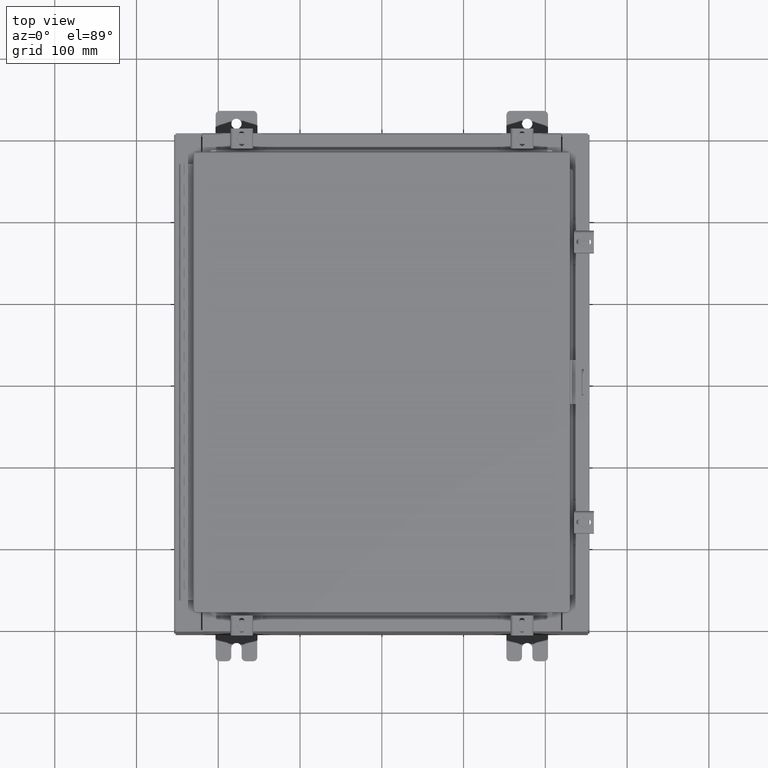
[diagram: clean part render]
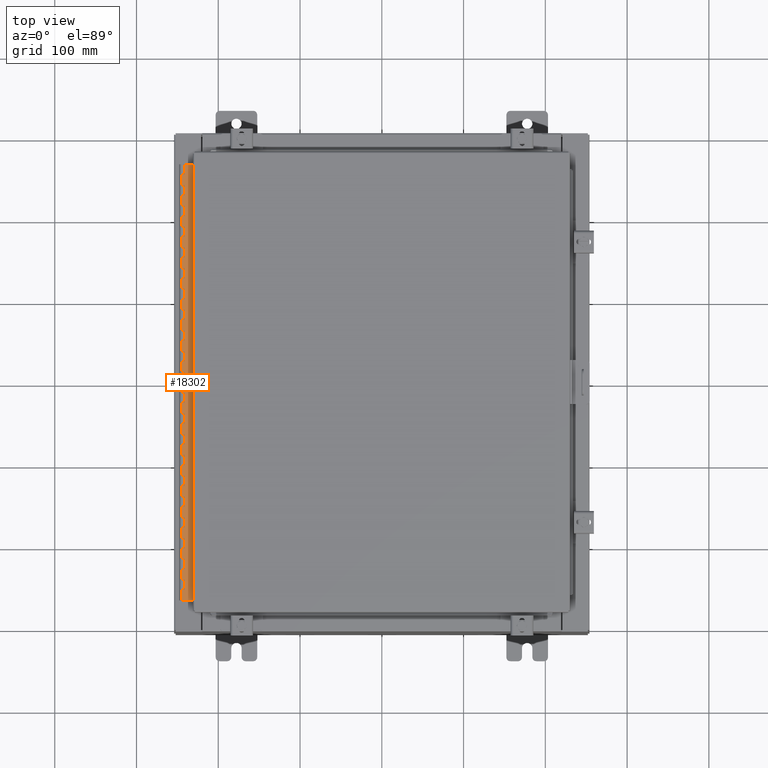
[diagram: same view with one face highlighted and labeled with its STEP entity id]
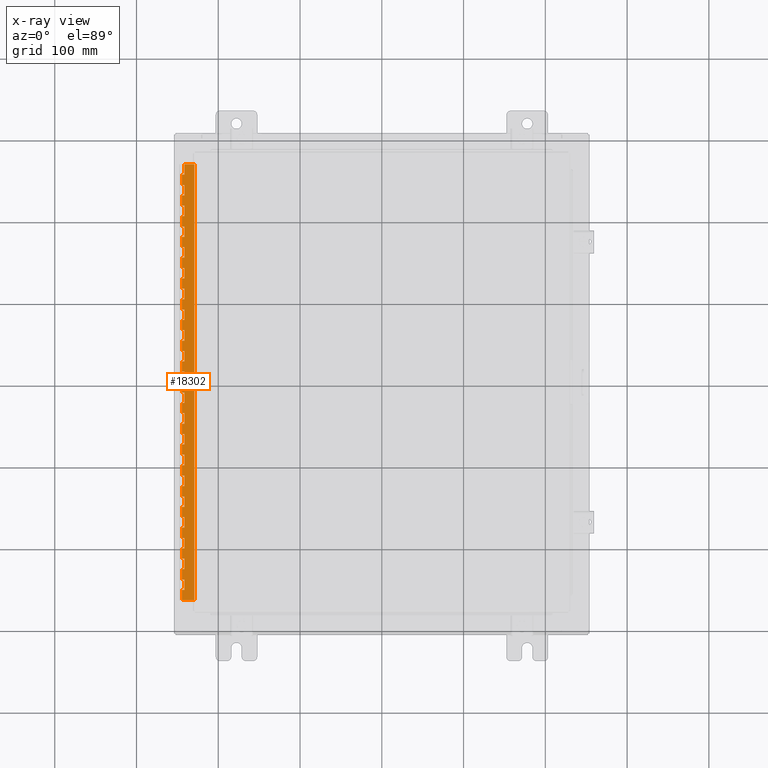
[diagram: x-ray of the same camera — body ghosted, the highlighted face saturated]
A machine part, top view. The second image highlights one B-rep face of the part: STEP entity #18302.
The next image is the same camera in x-ray: the body ghosted, the highlighted face saturated — about 0% of this face is hidden behind the body in this view.
In plain terms, the highlighted planar face has unit normal (-0, -0, 1).
Its self-contained STEP definition (entity closure, byte-faithful):
#9 = LINE ( 'NONE', #27159, #19514 ) ;
#210 = DIRECTION ( 'NONE',  ( -2.436840640034283600E-028, -9.604769729993285800E-031, 1.000000000000000000 ) ) ;
#230 = VERTEX_POINT ( 'NONE', #20882 ) ;
#319 = ORIENTED_EDGE ( 'NONE', *, *, #28747, .F. ) ;
#375 = CARTESIAN_POINT ( 'NONE',  ( -0.6870000000000074900, 0.8005000000000001000, -16.49999999999998900 ) ) ;
#509 = LINE ( 'NONE', #25785, #25971 ) ;
#521 = VERTEX_POINT ( 'NONE', #9711 ) ;
#533 = VECTOR ( 'NONE', #10962, 39.37007874015748100 ) ;
#549 = CARTESIAN_POINT ( 'NONE',  ( -0.6870000000000074900, 0.8004999999999989900, -17.49999999999998900 ) ) ;
#563 = VECTOR ( 'NONE', #15112, 39.37007874015748100 ) ;
#582 = ORIENTED_EDGE ( 'NONE', *, *, #19778, .F. ) ;
#589 = CARTESIAN_POINT ( 'NONE',  ( -0.6869999999999987200, 0.6754999999999996600, -1.999999999999998400 ) ) ;
#594 = LINE ( 'NONE', #28815, #7378 ) ;
#606 = ORIENTED_EDGE ( 'NONE', *, *, #9417, .F. ) ;
#629 = ORIENTED_EDGE ( 'NONE', *, *, #24331, .F. ) ;
#676 = DIRECTION ( 'NONE',  ( 2.436840640034283600E-028, 9.604769729993285800E-031, -1.000000000000000000 ) ) ;
#708 = VERTEX_POINT ( 'NONE', #12943 ) ;
#785 = DIRECTION ( 'NONE',  ( -3.389037039080712900E-015, -1.000000000000000000, 1.051069194905655400E-030 ) ) ;
#904 = LINE ( 'NONE', #32343, #19610 ) ;
#919 = CARTESIAN_POINT ( 'NONE',  ( -0.6869999999999987200, 0.8005000000000001000, -6.499999999999996400 ) ) ;
#1066 = ORIENTED_EDGE ( 'NONE', *, *, #14697, .F. ) ;
#1136 = ORIENTED_EDGE ( 'NONE', *, *, #27668, .F. ) ;
#1190 = VERTEX_POINT ( 'NONE', #2560 ) ;
#1223 = CARTESIAN_POINT ( 'NONE',  ( -0.6869999999999987200, 0.8005000000000001000, -17.99999999999998600 ) ) ;
#1298 = EDGE_CURVE ( 'NONE', #26612, #19050, #4378, .T. ) ;
#1308 = LINE ( 'NONE', #10908, #27591 ) ;
#1317 = VERTEX_POINT ( 'NONE', #10554 ) ;
#1351 = CARTESIAN_POINT ( 'NONE',  ( -0.6869999999999987200, 0.5504999999999999900, -14.00000000000000000 ) ) ;
#1413 = VECTOR ( 'NONE', #29293, 39.37007874015748100 ) ;
#1460 = DIRECTION ( 'NONE',  ( 2.436840640034283600E-028, 9.604769729993285800E-031, -1.000000000000000000 ) ) ;
#1467 = EDGE_CURVE ( 'NONE', #2717, #14699, #6373, .T. ) ;
#1523 = VECTOR ( 'NONE', #4381, 39.37007874015748100 ) ;
#1591 = CARTESIAN_POINT ( 'NONE',  ( -0.6870000000000096000, 0.6754999999999996600, -21.00000000000000000 ) ) ;
#1681 = LINE ( 'NONE', #23879, #8465 ) ;
#1781 = ORIENTED_EDGE ( 'NONE', *, *, #1298, .F. ) ;
#1789 = CARTESIAN_POINT ( 'NONE',  ( -0.6870000000000074900, 0.5504999999999989900, -19.50000000000000000 ) ) ;
#1831 = CARTESIAN_POINT ( 'NONE',  ( -0.6869999999999987200, 0.8004999999999989900, -6.999999999999998200 ) ) ;
#1865 = DIRECTION ( 'NONE',  ( 3.389037039080712900E-015, 1.000000000000000000, -1.051069194905655400E-030 ) ) ;
#1922 = CARTESIAN_POINT ( 'NONE',  ( -0.6870000000000096000, 0.5504999999999999900, -17.99999999999999600 ) ) ;
#1923 = VERTEX_POINT ( 'NONE', #2333 ) ;
#1948 = CARTESIAN_POINT ( 'NONE',  ( -0.6869999999999987200, 0.5504999999999999900, -12.49999999999999800 ) ) ;
#2002 = DIRECTION ( 'NONE',  ( 2.436840640034283600E-028, 9.604769729993285800E-031, -1.000000000000000000 ) ) ;
#2020 = EDGE_CURVE ( 'NONE', #17847, #2094, #13239, .T. ) ;
#2094 = VERTEX_POINT ( 'NONE', #31007 ) ;
#2184 = LINE ( 'NONE', #31244, #20917 ) ;
#2192 = DIRECTION ( 'NONE',  ( -2.436840640034283600E-028, -9.604769729993285800E-031, 1.000000000000000000 ) ) ;
#2232 = VERTEX_POINT ( 'NONE', #21358 ) ;
#2252 = CARTESIAN_POINT ( 'NONE',  ( -0.6869999999999987200, 0.6754999999999996600, -11.99999999999999800 ) ) ;
#2271 = CARTESIAN_POINT ( 'NONE',  ( -0.6870000000000074900, 0.5504999999999999900, -3.499999999999999100 ) ) ;
#2278 = ORIENTED_EDGE ( 'NONE', *, *, #2437, .F. ) ;
#2297 = EDGE_CURVE ( 'NONE', #28360, #23433, #17210, .T. ) ;
#2314 = ORIENTED_EDGE ( 'NONE', *, *, #21433, .T. ) ;
#2333 = CARTESIAN_POINT ( 'NONE',  ( -0.6870000000000096000, 0.5504999999999999900, -1.999999999999998400 ) ) ;
#2429 = ORIENTED_EDGE ( 'NONE', *, *, #15458, .T. ) ;
#2437 = EDGE_CURVE ( 'NONE', #7028, #28771, #27543, .T. ) ;
#2526 = DIRECTION ( 'NONE',  ( 2.436840640034283600E-028, 9.604769729993285800E-031, -1.000000000000000000 ) ) ;
#2527 = VERTEX_POINT ( 'NONE', #24866 ) ;
#2560 = CARTESIAN_POINT ( 'NONE',  ( -0.6869999999999987200, 0.6754999999999996600, -18.50000000000000000 ) ) ;
#2584 = LINE ( 'NONE', #13333, #7764 ) ;
#2592 = CARTESIAN_POINT ( 'NONE',  ( -0.6870000000000074900, 0.8005000000000001000, -13.99999999999998800 ) ) ;
#2609 = LINE ( 'NONE', #26924, #22106 ) ;
#2664 = DIRECTION ( 'NONE',  ( -2.436840640034283600E-028, -9.604769729993285800E-031, 1.000000000000000000 ) ) ;
#2717 = VERTEX_POINT ( 'NONE', #25637 ) ;
#2732 = VERTEX_POINT ( 'NONE', #10404 ) ;
#2814 = DIRECTION ( 'NONE',  ( -3.389037039080712900E-015, -1.000000000000000000, 1.051069194905655400E-030 ) ) ;
#2862 = LINE ( 'NONE', #3508, #16417 ) ;
#2964 = CARTESIAN_POINT ( 'NONE',  ( -0.6870000000000096000, 0.5504999999999999900, -18.50000000000000000 ) ) ;
#3002 = VERTEX_POINT ( 'NONE', #23728 ) ;
#3035 = ORIENTED_EDGE ( 'NONE', *, *, #32755, .F. ) ;
#3040 = ORIENTED_EDGE ( 'NONE', *, *, #17005, .F. ) ;
#3178 = LINE ( 'NONE', #31377, #8364 ) ;
#3218 = VECTOR ( 'NONE', #11599, 39.37007874015748100 ) ;
#3455 = VERTEX_POINT ( 'NONE', #25714 ) ;
#3508 = CARTESIAN_POINT ( 'NONE',  ( -0.6869999999999965000, 0.8005000000000001000, -10.49999999999998900 ) ) ;
#3559 = ORIENTED_EDGE ( 'NONE', *, *, #15122, .F. ) ;
#3580 = CARTESIAN_POINT ( 'NONE',  ( -0.6870000000000096000, 0.6754999999999996600, -20.50000000000000400 ) ) ;
#3608 = ORIENTED_EDGE ( 'NONE', *, *, #10794, .F. ) ;
#3609 = EDGE_CURVE ( 'NONE', #9334, #5145, #3178, .T. ) ;
#3812 = ORIENTED_EDGE ( 'NONE', *, *, #11359, .F. ) ;
#3814 = CARTESIAN_POINT ( 'NONE',  ( -0.6870000000000074900, 0.5504999999999989900, -19.50000000000000000 ) ) ;
#3815 = VERTEX_POINT ( 'NONE', #22363 ) ;
#3870 = VECTOR ( 'NONE', #31425, 39.37007874015748100 ) ;
#3904 = DIRECTION ( 'NONE',  ( 2.436840640034283600E-028, 9.604769729993285800E-031, -1.000000000000000000 ) ) ;
#3944 = EDGE_CURVE ( 'NONE', #12270, #24648, #5568, .T. ) ;
#4017 = LINE ( 'NONE', #26831, #3218 ) ;
#4026 = CARTESIAN_POINT ( 'NONE',  ( -0.6870000000000074900, 0.5504999999999999900, -2.500000000000000000 ) ) ;
#4114 = VECTOR ( 'NONE', #16617, 39.37007874015748100 ) ;
#4117 = LINE ( 'NONE', #27397, #4925 ) ;
#4191 = ORIENTED_EDGE ( 'NONE', *, *, #11275, .T. ) ;
#4280 = CARTESIAN_POINT ( 'NONE',  ( -0.6869999999999987200, 0.6754999999999996600, -0.9999999999999992200 ) ) ;
#4314 = CARTESIAN_POINT ( 'NONE',  ( -0.6870000000000074900, 0.8004999999999989900, -15.49999999999998900 ) ) ;
#4358 = DIRECTION ( 'NONE',  ( 2.436840640034283600E-028, 9.604769729993285800E-031, -1.000000000000000000 ) ) ;
#4361 = CARTESIAN_POINT ( 'NONE',  ( -0.6870000000000074900, 0.8004999999999989900, -12.99999999999998800 ) ) ;
#4378 = LINE ( 'NONE', #15692, #11159 ) ;
#4381 = DIRECTION ( 'NONE',  ( 3.369016658928387200E-015, 1.000000000000000000, -1.048203974427294600E-030 ) ) ;
#4421 = EDGE_CURVE ( 'NONE', #23433, #11288, #5532, .T. ) ;
#4516 = ORIENTED_EDGE ( 'NONE', *, *, #5967, .F. ) ;
#4629 = VERTEX_POINT ( 'NONE', #8106 ) ;
#4631 = VECTOR ( 'NONE', #32315, 39.37007874015748100 ) ;
#4668 = CARTESIAN_POINT ( 'NONE',  ( -0.6869999999999987200, 0.8004999999999989900, -5.000000000000000000 ) ) ;
#4721 = CARTESIAN_POINT ( 'NONE',  ( -0.6870000000000096000, 0.5504999999999999900, -16.00000000000000000 ) ) ;
#4758 = VERTEX_POINT ( 'NONE', #21442 ) ;
#4842 = CARTESIAN_POINT ( 'NONE',  ( -0.6869999999999987200, 0.5504999999999999900, -10.00000000000000000 ) ) ;
#4845 = VERTEX_POINT ( 'NONE', #16558 ) ;
#4925 = VECTOR ( 'NONE', #14601, 39.37007874015748100 ) ;
#4947 = LINE ( 'NONE', #17811, #30394 ) ;
#4980 = VECTOR ( 'NONE', #20516, 39.37007874015748100 ) ;
#4991 = VERTEX_POINT ( 'NONE', #19654 ) ;
#5068 = VERTEX_POINT ( 'NONE', #2271 ) ;
#5079 = CARTESIAN_POINT ( 'NONE',  ( -0.6870000000000096000, 0.6754999999999996600, -21.00000000000000000 ) ) ;
#5112 = DIRECTION ( 'NONE',  ( -2.436840640034283600E-028, -9.604769729993285800E-031, 1.000000000000000000 ) ) ;
#5145 = VERTEX_POINT ( 'NONE', #12750 ) ;
#5148 = VERTEX_POINT ( 'NONE', #7409 ) ;
#5154 = DIRECTION ( 'NONE',  ( 3.389037039080712900E-015, 1.000000000000000000, -1.051069194905655400E-030 ) ) ;
#5180 = VECTOR ( 'NONE', #10896, 39.37007874015748100 ) ;
#5254 = CARTESIAN_POINT ( 'NONE',  ( -0.6870000000000074900, 0.8005000000000001000, -11.99999999999998800 ) ) ;
#5376 = VECTOR ( 'NONE', #26363, 39.37007874015748100 ) ;
#5437 = LINE ( 'NONE', #29761, #4631 ) ;
#5463 = ORIENTED_EDGE ( 'NONE', *, *, #11305, .F. ) ;
#5497 = ORIENTED_EDGE ( 'NONE', *, *, #28089, .F. ) ;
#5532 = LINE ( 'NONE', #17465, #25000 ) ;
#5546 = VECTOR ( 'NONE', #9044, 39.37007874015748100 ) ;
#5568 = LINE ( 'NONE', #25448, #25031 ) ;
#5579 = CARTESIAN_POINT ( 'NONE',  ( -0.6870000000000074900, 0.6754999999999996600, -8.500000000000000000 ) ) ;
#5618 = EDGE_CURVE ( 'NONE', #5709, #31022, #2862, .T. ) ;
#5709 = VERTEX_POINT ( 'NONE', #8855 ) ;
#5737 = LINE ( 'NONE', #26712, #4114 ) ;
#5740 = EDGE_CURVE ( 'NONE', #17832, #21292, #26736, .T. ) ;
#5854 = VERTEX_POINT ( 'NONE', #6856 ) ;
#5967 = EDGE_CURVE ( 'NONE', #12270, #708, #15211, .T. ) ;
#5997 = CARTESIAN_POINT ( 'NONE',  ( -0.6870000000000096000, 0.5504999999999999900, -14.49999999999999800 ) ) ;
#6066 = CARTESIAN_POINT ( 'NONE',  ( -0.6869999999999987200, 0.6754999999999996600, 0.0000000000000000000 ) ) ;
#6188 = ORIENTED_EDGE ( 'NONE', *, *, #29326, .F. ) ;
#6209 = LINE ( 'NONE', #26585, #12155 ) ;
#6260 = CARTESIAN_POINT ( 'NONE',  ( -0.6869999999999987200, 0.6754999999999996600, -19.00000000000000000 ) ) ;
#6292 = VERTEX_POINT ( 'NONE', #3580 ) ;
#6340 = CARTESIAN_POINT ( 'NONE',  ( -0.6870000000000074900, 0.8005000000000001000, -0.4999999999999973900 ) ) ;
#6366 = EDGE_CURVE ( 'NONE', #11288, #31083, #4017, .T. ) ;
#6373 = LINE ( 'NONE', #375, #19111 ) ;
#6386 = CARTESIAN_POINT ( 'NONE',  ( -0.6870000000000074900, 0.5504999999999999900, -20.50000000000000400 ) ) ;
#6400 = VECTOR ( 'NONE', #21283, 39.37007874015748100 ) ;
#6463 = VECTOR ( 'NONE', #22692, 39.37007874015748100 ) ;
#6638 = CARTESIAN_POINT ( 'NONE',  ( -0.6870000000000074900, 0.6754999999999996600, -6.999999999999998200 ) ) ;
#6856 = CARTESIAN_POINT ( 'NONE',  ( -0.6869999999999987200, 0.6754999999999996600, -1.500000000000000900 ) ) ;
#6984 = DIRECTION ( 'NONE',  ( 3.389037039080712900E-015, 1.000000000000000000, -1.051069194905655400E-030 ) ) ;
#6994 = ORIENTED_EDGE ( 'NONE', *, *, #24518, .F. ) ;
#7009 = EDGE_CURVE ( 'NONE', #28427, #12083, #18725, .T. ) ;
#7028 = VERTEX_POINT ( 'NONE', #11125 ) ;
#7239 = VECTOR ( 'NONE', #19557, 39.37007874015748100 ) ;
#7252 = CARTESIAN_POINT ( 'NONE',  ( -0.6870000000000096000, 0.5504999999999978800, -15.49999999999999800 ) ) ;
#7321 = LINE ( 'NONE', #26076, #533 ) ;
#7322 = LINE ( 'NONE', #919, #22435 ) ;
#7376 = LINE ( 'NONE', #18021, #20916 ) ;
#7378 = VECTOR ( 'NONE', #16047, 39.37007874015748100 ) ;
#7409 = CARTESIAN_POINT ( 'NONE',  ( -0.6869999999999987200, 0.6754999999999996600, -19.50000000000000000 ) ) ;
#7426 = ORIENTED_EDGE ( 'NONE', *, *, #26412, .F. ) ;
#7461 = ORIENTED_EDGE ( 'NONE', *, *, #22112, .F. ) ;
#7538 = DIRECTION ( 'NONE',  ( -2.436840640034283600E-028, -9.604769729993285800E-031, 1.000000000000000000 ) ) ;
#7666 = CARTESIAN_POINT ( 'NONE',  ( -0.6870000000000096000, 0.6754999999999996600, -21.00000000000000000 ) ) ;
#7690 = CARTESIAN_POINT ( 'NONE',  ( -0.6869999999999987200, 0.6754999999999996600, -4.499999999999998200 ) ) ;
#7735 = CARTESIAN_POINT ( 'NONE',  ( -0.6869999999999965000, 0.8004999999999989900, -10.99999999999998900 ) ) ;
#7750 = EDGE_CURVE ( 'NONE', #24140, #13229, #12296, .T. ) ;
#7764 = VECTOR ( 'NONE', #28584, 39.37007874015748100 ) ;
#7768 = VECTOR ( 'NONE', #7538, 39.37007874015748100 ) ;
#7899 = EDGE_CURVE ( 'NONE', #28601, #12266, #21054, .T. ) ;
#8010 = LINE ( 'NONE', #26904, #14790 ) ;
#8070 = CARTESIAN_POINT ( 'NONE',  ( -0.6869999999999987200, 0.5504999999999989900, -12.99999999999999800 ) ) ;
#8071 = ORIENTED_EDGE ( 'NONE', *, *, #9397, .F. ) ;
#8106 = CARTESIAN_POINT ( 'NONE',  ( -0.6869999999999987200, 0.5504999999999989900, -13.50000000000000000 ) ) ;
#8156 = CARTESIAN_POINT ( 'NONE',  ( -0.6869999999999987200, 0.6754999999999996600, -2.999999999999997300 ) ) ;
#8204 = CARTESIAN_POINT ( 'NONE',  ( -0.6869999999999987200, 0.6754999999999996600, -2.500000000000000000 ) ) ;
#8230 = ORIENTED_EDGE ( 'NONE', *, *, #16189, .T. ) ;
#8261 = DIRECTION ( 'NONE',  ( 3.389037039080712900E-015, 1.000000000000000000, -1.051069194905655400E-030 ) ) ;
#8345 = CARTESIAN_POINT ( 'NONE',  ( -0.6870000000000096000, 0.6754999999999996600, -21.00000000000000000 ) ) ;
#8364 = VECTOR ( 'NONE', #13602, 39.37007874015748100 ) ;
#8399 = LINE ( 'NONE', #20349, #21143 ) ;
#8401 = CARTESIAN_POINT ( 'NONE',  ( -0.6869999999999987200, 0.6754999999999996600, -12.99999999999999800 ) ) ;
#8435 = LINE ( 'NONE', #32478, #14405 ) ;
#8465 = VECTOR ( 'NONE', #21357, 39.37007874015748100 ) ;
#8481 = EDGE_CURVE ( 'NONE', #8583, #4991, #20216, .T. ) ;
#8510 = VERTEX_POINT ( 'NONE', #1948 ) ;
#8519 = VECTOR ( 'NONE', #25496, 39.37007874015748100 ) ;
#8546 = ORIENTED_EDGE ( 'NONE', *, *, #6366, .F. ) ;
#8579 = CARTESIAN_POINT ( 'NONE',  ( -0.6870000000000074900, 0.8005000000000001000, -15.99999999999998900 ) ) ;
#8583 = VERTEX_POINT ( 'NONE', #4842 ) ;
#8608 = ORIENTED_EDGE ( 'NONE', *, *, #14896, .F. ) ;
#8740 = VERTEX_POINT ( 'NONE', #8070 ) ;
#8799 = CARTESIAN_POINT ( 'NONE',  ( -0.6870000000000096000, 0.6754999999999996600, -21.00000000000000000 ) ) ;
#8837 = CARTESIAN_POINT ( 'NONE',  ( -0.6869999999999987200, 0.8005000000000001000, -5.999999999999999100 ) ) ;
#8855 = CARTESIAN_POINT ( 'NONE',  ( -0.6870000000000074900, 0.6754999999999996600, -10.50000000000000000 ) ) ;
#8873 = DIRECTION ( 'NONE',  ( -2.436840640034283600E-028, -9.604769729993285800E-031, 1.000000000000000000 ) ) ;
#8960 = EDGE_CURVE ( 'NONE', #21005, #12266, #22518, .T. ) ;
#8963 = CARTESIAN_POINT ( 'NONE',  ( -0.6869999999999987200, 0.5504999999999999900, -10.50000000000000000 ) ) ;
#8976 = ORIENTED_EDGE ( 'NONE', *, *, #2297, .F. ) ;
#9044 = DIRECTION ( 'NONE',  ( 2.436840640034283600E-028, 9.604769729993285800E-031, -1.000000000000000000 ) ) ;
#9246 = CARTESIAN_POINT ( 'NONE',  ( -0.6869999999999987200, 0.6754999999999996600, -17.00000000000000000 ) ) ;
#9334 = VERTEX_POINT ( 'NONE', #15708 ) ;
#9345 = EDGE_CURVE ( 'NONE', #3002, #8583, #16545, .T. ) ;
#9347 = ORIENTED_EDGE ( 'NONE', *, *, #9345, .F. ) ;
#9349 = DIRECTION ( 'NONE',  ( -2.436840640034283600E-028, -9.604769729993285800E-031, 1.000000000000000000 ) ) ;
#9397 = EDGE_CURVE ( 'NONE', #4758, #8510, #2184, .T. ) ;
#9417 = EDGE_CURVE ( 'NONE', #14649, #230, #594, .T. ) ;
#9431 = CARTESIAN_POINT ( 'NONE',  ( -0.6869999999999987200, 0.5504999999999989900, -6.999999999999998200 ) ) ;
#9434 = CARTESIAN_POINT ( 'NONE',  ( -0.6869999999999987200, 0.8005000000000001000, -18.99999999999998900 ) ) ;
#9711 = CARTESIAN_POINT ( 'NONE',  ( -0.6869999999999987200, 0.5504999999999999900, -8.499999999999989300 ) ) ;
#9729 = CARTESIAN_POINT ( 'NONE',  ( -0.6870000000000118200, -0.6245000000000057200, -20.99999999999999600 ) ) ;
#9909 = EDGE_CURVE ( 'NONE', #31565, #21172, #10521, .T. ) ;
#10081 = CARTESIAN_POINT ( 'NONE',  ( -0.6870000000000074900, 0.6755000000000051000, -9.499999999999998200 ) ) ;
#10222 = DIRECTION ( 'NONE',  ( -2.436840640034283600E-028, -9.604769729993285800E-031, 1.000000000000000000 ) ) ;
#10324 = ORIENTED_EDGE ( 'NONE', *, *, #22545, .F. ) ;
#10336 = CARTESIAN_POINT ( 'NONE',  ( -0.6870000000000096000, 0.6754999999999996600, -21.00000000000000000 ) ) ;
#10404 = CARTESIAN_POINT ( 'NONE',  ( -0.6870000000000096000, 0.5504999999999989900, -17.49999999999999600 ) ) ;
#10421 = VECTOR ( 'NONE', #14010, 39.37007874015748100 ) ;
#10436 = LINE ( 'NONE', #24993, #29930 ) ;
#10469 = VERTEX_POINT ( 'NONE', #1922 ) ;
#10521 = LINE ( 'NONE', #27787, #563 ) ;
#10554 = CARTESIAN_POINT ( 'NONE',  ( -0.6870000000000074900, 0.6755000000000051000, -7.499999999999995600 ) ) ;
#10556 = DIRECTION ( 'NONE',  ( -3.389037039080712900E-015, -1.000000000000000000, 1.051069194905655400E-030 ) ) ;
#10590 = ORIENTED_EDGE ( 'NONE', *, *, #27515, .F. ) ;
#10629 = LINE ( 'NONE', #5997, #3870 ) ;
#10663 = EDGE_CURVE ( 'NONE', #24826, #2527, #20449, .T. ) ;
#10695 = CARTESIAN_POINT ( 'NONE',  ( -0.6869999999999987200, 0.8004999999999989900, -19.49999999999998900 ) ) ;
#10776 = VERTEX_POINT ( 'NONE', #8156 ) ;
#10794 = EDGE_CURVE ( 'NONE', #12718, #16661, #18050, .T. ) ;
#10826 = DIRECTION ( 'NONE',  ( 3.389037039080712900E-015, 1.000000000000000000, -1.051069194905655400E-030 ) ) ;
#10890 = LINE ( 'NONE', #26989, #16086 ) ;
#10896 = DIRECTION ( 'NONE',  ( 2.436840640034283600E-028, 9.604769729993285800E-031, -1.000000000000000000 ) ) ;
#10908 = CARTESIAN_POINT ( 'NONE',  ( -0.6869999999999987200, 0.8005000000000044300, -7.499999999999995600 ) ) ;
#10962 = DIRECTION ( 'NONE',  ( 2.436840640034283600E-028, 9.604769729993285800E-031, -1.000000000000000000 ) ) ;
#10980 = CARTESIAN_POINT ( 'NONE',  ( -0.6869999999999987200, 0.5504999999999999900, -5.999999999999999100 ) ) ;
#11033 = VERTEX_POINT ( 'NONE', #14259 ) ;
#11125 = CARTESIAN_POINT ( 'NONE',  ( -0.6869999999999987200, 0.6754999999999996600, -15.50000000000000000 ) ) ;
#11159 = VECTOR ( 'NONE', #30903, 39.37007874015748100 ) ;
#11162 = ORIENTED_EDGE ( 'NONE', *, *, #17051, .F. ) ;
#11201 = CARTESIAN_POINT ( 'NONE',  ( -0.6870000000000074900, 0.5504999999999989900, -5.000000000000000000 ) ) ;
#11275 = EDGE_CURVE ( 'NONE', #26728, #31737, #12028, .T. ) ;
#11288 = VERTEX_POINT ( 'NONE', #21383 ) ;
#11305 = EDGE_CURVE ( 'NONE', #14699, #15933, #19594, .T. ) ;
#11359 = EDGE_CURVE ( 'NONE', #9334, #28427, #22362, .T. ) ;
#11372 = VECTOR ( 'NONE', #29265, 39.37007874015748100 ) ;
#11484 = DIRECTION ( 'NONE',  ( -3.389037039080712900E-015, -1.000000000000000000, 1.051069194905655400E-030 ) ) ;
#11528 = ORIENTED_EDGE ( 'NONE', *, *, #15031, .F. ) ;
#11599 = DIRECTION ( 'NONE',  ( 3.389037039080712900E-015, 1.000000000000000000, -1.051069194905655400E-030 ) ) ;
#11665 = LINE ( 'NONE', #13388, #18446 ) ;
#11678 = DIRECTION ( 'NONE',  ( -2.436840640034283600E-028, -9.604769729993285800E-031, 1.000000000000000000 ) ) ;
#11688 = DIRECTION ( 'NONE',  ( -3.389037039080712900E-015, -1.000000000000000000, 1.051069194905655400E-030 ) ) ;
#11691 = LINE ( 'NONE', #32270, #25196 ) ;
#11698 = VERTEX_POINT ( 'NONE', #13345 ) ;
#11771 = CARTESIAN_POINT ( 'NONE',  ( -0.6870000000000096000, 0.5504999999999999900, -17.00000000000000000 ) ) ;
#11889 = EDGE_CURVE ( 'NONE', #3815, #5068, #8010, .T. ) ;
#11970 = LINE ( 'NONE', #23193, #27108 ) ;
#11977 = EDGE_CURVE ( 'NONE', #230, #31737, #18364, .T. ) ;
#12006 = VECTOR ( 'NONE', #18481, 39.37007874015748100 ) ;
#12028 = LINE ( 'NONE', #13711, #25544 ) ;
#12083 = VERTEX_POINT ( 'NONE', #17677 ) ;
#12100 = VECTOR ( 'NONE', #18035, 39.37007874015748100 ) ;
#12124 = EDGE_CURVE ( 'NONE', #31022, #29016, #8399, .T. ) ;
#12155 = VECTOR ( 'NONE', #23906, 39.37007874015748100 ) ;
#12219 = EDGE_CURVE ( 'NONE', #25927, #2094, #11970, .T. ) ;
#12266 = VERTEX_POINT ( 'NONE', #13199 ) ;
#12270 = VERTEX_POINT ( 'NONE', #8204 ) ;
#12296 = LINE ( 'NONE', #8837, #31782 ) ;
#12311 = DIRECTION ( 'NONE',  ( 1.000000000000000000, -3.369016658928386800E-015, -2.436840640034271000E-028 ) ) ;
#12317 = ORIENTED_EDGE ( 'NONE', *, *, #30037, .T. ) ;
#12376 = CARTESIAN_POINT ( 'NONE',  ( -0.6869999999999987200, 0.6755000000000007700, -17.99999999999999600 ) ) ;
#12519 = LINE ( 'NONE', #1831, #32781 ) ;
#12533 = LINE ( 'NONE', #1591, #16901 ) ;
#12561 = CARTESIAN_POINT ( 'NONE',  ( -0.6870000000000074900, 0.5504999999999999900, -20.00000000000000000 ) ) ;
#12580 = EDGE_CURVE ( 'NONE', #28771, #31215, #25808, .T. ) ;
#12605 = CARTESIAN_POINT ( 'NONE',  ( -0.6870000000000096000, 0.6754999999999996600, -21.00000000000000000 ) ) ;
#12617 = CARTESIAN_POINT ( 'NONE',  ( -0.6870000000000096000, 0.5504999999999999900, -16.49999999999999600 ) ) ;
#12654 = ORIENTED_EDGE ( 'NONE', *, *, #31891, .T. ) ;
#12672 = ORIENTED_EDGE ( 'NONE', *, *, #5618, .F. ) ;
#12717 = CARTESIAN_POINT ( 'NONE',  ( -0.6870000000000096000, 0.5504999999999989900, -14.99999999999999800 ) ) ;
#12718 = VERTEX_POINT ( 'NONE', #12717 ) ;
#12725 = LINE ( 'NONE', #24097, #26230 ) ;
#12750 = CARTESIAN_POINT ( 'NONE',  ( -0.6870000000000074900, 0.6754999999999996600, -11.00000000000000000 ) ) ;
#12841 = CARTESIAN_POINT ( 'NONE',  ( -0.6870000000000074900, 0.5504999999999999900, -4.499999999999998200 ) ) ;
#12888 = CARTESIAN_POINT ( 'NONE',  ( -0.6870000000000074900, 0.8004999999999989900, -13.49999999999998900 ) ) ;
#12943 = CARTESIAN_POINT ( 'NONE',  ( -0.6870000000000074900, 0.5504999999999999900, -2.500000000000000000 ) ) ;
#12990 = ORIENTED_EDGE ( 'NONE', *, *, #26775, .T. ) ;
#13005 = ORIENTED_EDGE ( 'NONE', *, *, #14088, .F. ) ;
#13101 = DIRECTION ( 'NONE',  ( 3.389037039080712900E-015, 1.000000000000000000, -1.051069194905655400E-030 ) ) ;
#13199 = CARTESIAN_POINT ( 'NONE',  ( -0.6870000000000009400, 0.5504999999999999900, -21.00000000000000000 ) ) ;
#13212 = VECTOR ( 'NONE', #16664, 39.37007874015748100 ) ;
#13221 = LINE ( 'NONE', #4668, #26748 ) ;
#13229 = VERTEX_POINT ( 'NONE', #24775 ) ;
#13239 = LINE ( 'NONE', #10336, #31926 ) ;
#13333 = CARTESIAN_POINT ( 'NONE',  ( -0.6870000000000096000, 0.6754999999999996600, -21.00000000000000000 ) ) ;
#13336 = VECTOR ( 'NONE', #676, 39.37007874015748100 ) ;
#13345 = CARTESIAN_POINT ( 'NONE',  ( -0.6869999999999987200, 0.6754999999999996600, -3.999999999999996900 ) ) ;
#13388 = CARTESIAN_POINT ( 'NONE',  ( -0.6869999999999987200, 0.8005000000000001000, -3.999999999999996900 ) ) ;
#13397 = EDGE_CURVE ( 'NONE', #2717, #11033, #23748, .T. ) ;
#13402 = ORIENTED_EDGE ( 'NONE', *, *, #20291, .F. ) ;
#13602 = DIRECTION ( 'NONE',  ( -2.436840640034283600E-028, -9.604769729993285800E-031, 1.000000000000000000 ) ) ;
#13637 = EDGE_CURVE ( 'NONE', #26207, #12718, #10629, .T. ) ;
#13650 = ORIENTED_EDGE ( 'NONE', *, *, #12580, .F. ) ;
#13662 = VECTOR ( 'NONE', #5154, 39.37007874015748100 ) ;
#13711 = CARTESIAN_POINT ( 'NONE',  ( -0.6870000000000096000, 0.6754999999999996600, -21.00000000000000000 ) ) ;
#13773 = VECTOR ( 'NONE', #15454, 39.37007874015748100 ) ;
#13812 = CARTESIAN_POINT ( 'NONE',  ( -0.6870000000000074900, 0.6754999999999996600, -7.999999999999997300 ) ) ;
#13961 = LINE ( 'NONE', #18732, #6400 ) ;
#14010 = DIRECTION ( 'NONE',  ( -3.389037039080712900E-015, -1.000000000000000000, 1.051069194905655400E-030 ) ) ;
#14088 = EDGE_CURVE ( 'NONE', #28601, #28200, #5437, .T. ) ;
#14150 = CARTESIAN_POINT ( 'NONE',  ( -0.6870000000000096000, 0.5504999999999999900, -0.4999999999999973900 ) ) ;
#14259 = CARTESIAN_POINT ( 'NONE',  ( -0.6869999999999987200, 0.6754999999999996600, -16.00000000000000000 ) ) ;
#14319 = DIRECTION ( 'NONE',  ( -3.389037039080712900E-015, -1.000000000000000000, 1.051069194905655400E-030 ) ) ;
#14405 = VECTOR ( 'NONE', #2002, 39.37007874015748100 ) ;
#14411 = VECTOR ( 'NONE', #26883, 39.37007874015748100 ) ;
#14421 = ORIENTED_EDGE ( 'NONE', *, *, #2020, .T. ) ;
#14492 = LINE ( 'NONE', #7735, #8519 ) ;
#14533 = CARTESIAN_POINT ( 'NONE',  ( -0.6869999999999965000, 0.8005000000000001000, -9.999999999999989300 ) ) ;
#14549 = ORIENTED_EDGE ( 'NONE', *, *, #17389, .F. ) ;
#14559 = ORIENTED_EDGE ( 'NONE', *, *, #31696, .F. ) ;
#14562 = ORIENTED_EDGE ( 'NONE', *, *, #29859, .F. ) ;
#14597 = ORIENTED_EDGE ( 'NONE', *, *, #7899, .T. ) ;
#14601 = DIRECTION ( 'NONE',  ( -3.389037039080712900E-015, -1.000000000000000000, 1.051069194905655400E-030 ) ) ;
#14649 = VERTEX_POINT ( 'NONE', #27623 ) ;
#14697 = EDGE_CURVE ( 'NONE', #6292, #21005, #14959, .T. ) ;
#14699 = VERTEX_POINT ( 'NONE', #12617 ) ;
#14771 = EDGE_CURVE ( 'NONE', #12083, #31359, #25249, .T. ) ;
#14790 = VECTOR ( 'NONE', #19247, 39.37007874015748100 ) ;
#14896 = EDGE_CURVE ( 'NONE', #5148, #22278, #28852, .T. ) ;
#14924 = VECTOR ( 'NONE', #26646, 39.37007874015748100 ) ;
#14928 = LINE ( 'NONE', #29589, #20098 ) ;
#14944 = ORIENTED_EDGE ( 'NONE', *, *, #26391, .T. ) ;
#14959 = LINE ( 'NONE', #27850, #20929 ) ;
#15031 = EDGE_CURVE ( 'NONE', #31215, #11033, #18922, .T. ) ;
#15112 = DIRECTION ( 'NONE',  ( -2.436840640034283600E-028, -9.604769729993285800E-031, 1.000000000000000000 ) ) ;
#15122 = EDGE_CURVE ( 'NONE', #2232, #17685, #17319, .T. ) ;
#15210 = EDGE_CURVE ( 'NONE', #31565, #17917, #14928, .T. ) ;
#15211 = LINE ( 'NONE', #17531, #27933 ) ;
#15313 = VECTOR ( 'NONE', #5112, 39.37007874015748100 ) ;
#15343 = LINE ( 'NONE', #5079, #7768 ) ;
#15454 = DIRECTION ( 'NONE',  ( -3.389037039080712900E-015, -1.000000000000000000, 1.051069194905655400E-030 ) ) ;
#15458 = EDGE_CURVE ( 'NONE', #1190, #19433, #21277, .T. ) ;
#15560 = EDGE_CURVE ( 'NONE', #19072, #10776, #25622, .T. ) ;
#15629 = VECTOR ( 'NONE', #17048, 39.37007874015748100 ) ;
#15692 = CARTESIAN_POINT ( 'NONE',  ( -0.6869999999999987200, 0.8005000000000001000, -4.499999999999998200 ) ) ;
#15708 = CARTESIAN_POINT ( 'NONE',  ( -0.6870000000000074900, 0.6754999999999996600, -11.50000000000000000 ) ) ;
#15718 = EDGE_CURVE ( 'NONE', #3815, #10776, #20868, .T. ) ;
#15720 = VECTOR ( 'NONE', #3904, 39.37007874015748100 ) ;
#15726 = CARTESIAN_POINT ( 'NONE',  ( -0.6870000000000096000, 0.6755000000000051000, -5.499999999999997300 ) ) ;
#15748 = EDGE_CURVE ( 'NONE', #19050, #24195, #24679, .T. ) ;
#15899 = LINE ( 'NONE', #549, #30191 ) ;
#15932 = CARTESIAN_POINT ( 'NONE',  ( -0.6869999999999987200, 0.5504999999999989900, -11.00000000000000000 ) ) ;
#15933 = VERTEX_POINT ( 'NONE', #11771 ) ;
#15993 = ORIENTED_EDGE ( 'NONE', *, *, #24872, .F. ) ;
#16047 = DIRECTION ( 'NONE',  ( 2.436840640034283600E-028, 9.604769729993285800E-031, -1.000000000000000000 ) ) ;
#16086 = VECTOR ( 'NONE', #14319, 39.37007874015748100 ) ;
#16129 = CARTESIAN_POINT ( 'NONE',  ( -0.6870000000000074900, 0.5504999999999999900, -4.499999999999998200 ) ) ;
#16173 = ORIENTED_EDGE ( 'NONE', *, *, #23471, .F. ) ;
#16179 = ORIENTED_EDGE ( 'NONE', *, *, #13637, .F. ) ;
#16189 = EDGE_CURVE ( 'NONE', #3455, #31860, #15343, .T. ) ;
#16205 = ORIENTED_EDGE ( 'NONE', *, *, #8960, .F. ) ;
#16240 = ORIENTED_EDGE ( 'NONE', *, *, #15718, .T. ) ;
#16417 = VECTOR ( 'NONE', #21331, 39.37007874015748100 ) ;
#16545 = LINE ( 'NONE', #20835, #29264 ) ;
#16558 = CARTESIAN_POINT ( 'NONE',  ( -0.6870000000000074900, 0.6754999999999996600, -6.499999999999996400 ) ) ;
#16596 = EDGE_CURVE ( 'NONE', #28360, #22177, #12533, .T. ) ;
#16601 = CARTESIAN_POINT ( 'NONE',  ( -0.6869999999999987200, 0.5504999999999999900, -6.499999999999996400 ) ) ;
#16617 = DIRECTION ( 'NONE',  ( -3.389037039080712900E-015, -1.000000000000000000, 1.051069194905655400E-030 ) ) ;
#16632 = EDGE_CURVE ( 'NONE', #8510, #8740, #22831, .T. ) ;
#16661 = VERTEX_POINT ( 'NONE', #19855 ) ;
#16664 = DIRECTION ( 'NONE',  ( 3.389037039080712900E-015, 1.000000000000000000, -1.051069194905655400E-030 ) ) ;
#16695 = CARTESIAN_POINT ( 'NONE',  ( -0.6869999999999987200, 0.6754999999999996600, -0.4999999999999973900 ) ) ;
#16804 = LINE ( 'NONE', #12605, #23524 ) ;
#16901 = VECTOR ( 'NONE', #27081, 39.37007874015748100 ) ;
#17005 = EDGE_CURVE ( 'NONE', #28200, #22177, #11691, .T. ) ;
#17048 = DIRECTION ( 'NONE',  ( 3.389037039080712900E-015, 1.000000000000000000, -1.051069194905655400E-030 ) ) ;
#17051 = EDGE_CURVE ( 'NONE', #26728, #521, #4117, .T. ) ;
#17054 = DIRECTION ( 'NONE',  ( 3.369016658928387200E-015, 1.000000000000000000, -1.048203974427294600E-030 ) ) ;
#17097 = DIRECTION ( 'NONE',  ( 3.389037039080712900E-015, 1.000000000000000000, -1.051069194905655400E-030 ) ) ;
#17119 = ORIENTED_EDGE ( 'NONE', *, *, #19973, .T. ) ;
#17210 = LINE ( 'NONE', #6340, #10421 ) ;
#17246 = VECTOR ( 'NONE', #8261, 39.37007874015748100 ) ;
#17313 = VECTOR ( 'NONE', #4358, 39.37007874015748100 ) ;
#17319 = LINE ( 'NONE', #16601, #15720 ) ;
#17389 = EDGE_CURVE ( 'NONE', #1317, #14649, #1308, .T. ) ;
#17465 = CARTESIAN_POINT ( 'NONE',  ( -0.6870000000000096000, 0.5504999999999999900, -0.4999999999999973900 ) ) ;
#17520 = ORIENTED_EDGE ( 'NONE', *, *, #9909, .T. ) ;
#17531 = CARTESIAN_POINT ( 'NONE',  ( -0.6870000000000009400, 0.8004999999999989900, -2.500000000000000000 ) ) ;
#17677 = CARTESIAN_POINT ( 'NONE',  ( -0.6869999999999987200, 0.5504999999999999900, -11.99999999999999800 ) ) ;
#17685 = VERTEX_POINT ( 'NONE', #9431 ) ;
#17695 = EDGE_CURVE ( 'NONE', #1923, #24648, #904, .T. ) ;
#17705 = ORIENTED_EDGE ( 'NONE', *, *, #21741, .F. ) ;
#17761 = EDGE_CURVE ( 'NONE', #4758, #31359, #10436, .T. ) ;
#17764 = ORIENTED_EDGE ( 'NONE', *, *, #23806, .T. ) ;
#17811 = CARTESIAN_POINT ( 'NONE',  ( -0.6870000000000074900, 0.8004999999999989900, -16.99999999999998900 ) ) ;
#17832 = VERTEX_POINT ( 'NONE', #12561 ) ;
#17847 = VERTEX_POINT ( 'NONE', #10081 ) ;
#17917 = VERTEX_POINT ( 'NONE', #25537 ) ;
#17986 = VERTEX_POINT ( 'NONE', #2964 ) ;
#18021 = CARTESIAN_POINT ( 'NONE',  ( -0.6870000000000096000, 0.6754999999999996600, -21.00000000000000000 ) ) ;
#18035 = DIRECTION ( 'NONE',  ( 3.389037039080712900E-015, 1.000000000000000000, -1.051069194905655400E-030 ) ) ;
#18050 = LINE ( 'NONE', #18397, #17246 ) ;
#18137 = EDGE_CURVE ( 'NONE', #17986, #20986, #27946, .T. ) ;
#18276 = DIRECTION ( 'NONE',  ( 2.436840640034283600E-028, 9.604769729993285800E-031, -1.000000000000000000 ) ) ;
#18302 = ADVANCED_FACE ( 'NONE', ( #31151 ), #24962, .T. ) ;
#18364 = LINE ( 'NONE', #27355, #31872 ) ;
#18397 = CARTESIAN_POINT ( 'NONE',  ( -0.6870000000000074900, 0.8004999999999989900, -14.99999999999998800 ) ) ;
#18446 = VECTOR ( 'NONE', #10826, 39.37007874015748100 ) ;
#18460 = LINE ( 'NONE', #4026, #24393 ) ;
#18481 = DIRECTION ( 'NONE',  ( 2.436840640034283600E-028, 9.604769729993285800E-031, -1.000000000000000000 ) ) ;
#18488 = CARTESIAN_POINT ( 'NONE',  ( -0.6870000000000096000, 0.5504999999999999900, -1.499999999999992200 ) ) ;
#18588 = CARTESIAN_POINT ( 'NONE',  ( -0.6869999999999987200, 0.5504999999999945500, -11.50000000000000000 ) ) ;
#18599 = DIRECTION ( 'NONE',  ( -3.389037039080712900E-015, -1.000000000000000000, 1.051069194905655400E-030 ) ) ;
#18680 = ORIENTED_EDGE ( 'NONE', *, *, #25130, .F. ) ;
#18710 = ORIENTED_EDGE ( 'NONE', *, *, #17695, .F. ) ;
#18725 = LINE ( 'NONE', #18588, #5180 ) ;
#18732 = CARTESIAN_POINT ( 'NONE',  ( -0.6870000000000074900, 0.5504999999999999900, -3.499999999999999100 ) ) ;
#18736 = DIRECTION ( 'NONE',  ( -3.389037039080712900E-015, -1.000000000000000000, 1.051069194905655400E-030 ) ) ;
#18794 = LINE ( 'NONE', #31133, #12006 ) ;
#18922 = LINE ( 'NONE', #8579, #5376 ) ;
#18994 = CARTESIAN_POINT ( 'NONE',  ( -0.6870000000000096000, 0.6754999999999996600, -21.00000000000000000 ) ) ;
#19050 = VERTEX_POINT ( 'NONE', #12841 ) ;
#19060 = ORIENTED_EDGE ( 'NONE', *, *, #30232, .F. ) ;
#19072 = VERTEX_POINT ( 'NONE', #30601 ) ;
#19111 = VECTOR ( 'NONE', #2814, 39.37007874015748100 ) ;
#19247 = DIRECTION ( 'NONE',  ( -3.389037039080712900E-015, -1.000000000000000000, 1.051069194905655400E-030 ) ) ;
#19433 = VERTEX_POINT ( 'NONE', #12376 ) ;
#19475 = ORIENTED_EDGE ( 'NONE', *, *, #16632, .F. ) ;
#19514 = VECTOR ( 'NONE', #9349, 39.37007874015748100 ) ;
#19557 = DIRECTION ( 'NONE',  ( -3.389037039080712900E-015, -1.000000000000000000, 1.051069194905655400E-030 ) ) ;
#19594 = LINE ( 'NONE', #29059, #30704 ) ;
#19610 = VECTOR ( 'NONE', #1865, 39.37007874015748100 ) ;
#19646 = DIRECTION ( 'NONE',  ( 3.389037039080712900E-015, 1.000000000000000000, -1.051069194905655400E-030 ) ) ;
#19654 = CARTESIAN_POINT ( 'NONE',  ( -0.6870000000000074900, 0.6754999999999996600, -10.00000000000000000 ) ) ;
#19679 = LINE ( 'NONE', #28238, #24817 ) ;
#19778 = EDGE_CURVE ( 'NONE', #26516, #1923, #20928, .T. ) ;
#19794 = VERTEX_POINT ( 'NONE', #26132 ) ;
#19855 = CARTESIAN_POINT ( 'NONE',  ( -0.6869999999999987200, 0.6754999999999996600, -14.99999999999999800 ) ) ;
#19930 = CARTESIAN_POINT ( 'NONE',  ( -0.6870000000000096000, 0.5504999999999999900, -1.499999999999992200 ) ) ;
#19953 = ORIENTED_EDGE ( 'NONE', *, *, #24925, .F. ) ;
#19973 = EDGE_CURVE ( 'NONE', #5148, #31746, #22536, .T. ) ;
#20028 = DIRECTION ( 'NONE',  ( 3.389037039080712900E-015, 1.000000000000000000, -1.051069194905655400E-030 ) ) ;
#20060 = EDGE_CURVE ( 'NONE', #20986, #31746, #21761, .T. ) ;
#20065 = VECTOR ( 'NONE', #21137, 39.37007874015748100 ) ;
#20092 = DIRECTION ( 'NONE',  ( -3.389037039080712900E-015, -1.000000000000000000, 1.051069194905655400E-030 ) ) ;
#20098 = VECTOR ( 'NONE', #32127, 39.37007874015748100 ) ;
#20161 = CARTESIAN_POINT ( 'NONE',  ( -0.6869999999999987200, 0.5504999999999999900, -5.499999999999997300 ) ) ;
#20216 = LINE ( 'NONE', #14533, #27780 ) ;
#20291 = EDGE_CURVE ( 'NONE', #19794, #4629, #20561, .T. ) ;
#20349 = CARTESIAN_POINT ( 'NONE',  ( -0.6869999999999987200, 0.5504999999999999900, -10.50000000000000000 ) ) ;
#20387 = DIRECTION ( 'NONE',  ( 3.389037039080712900E-015, 1.000000000000000000, -1.051069194905655400E-030 ) ) ;
#20449 = LINE ( 'NONE', #2592, #13662 ) ;
#20516 = DIRECTION ( 'NONE',  ( 3.389037039080712900E-015, 1.000000000000000000, -1.051069194905655400E-030 ) ) ;
#20561 = LINE ( 'NONE', #12888, #13773 ) ;
#20694 = DIRECTION ( 'NONE',  ( -2.436840640034283600E-028, -9.604769729993285800E-031, 1.000000000000000000 ) ) ;
#20826 = DIRECTION ( 'NONE',  ( -3.389037039080712900E-015, -1.000000000000000000, 1.051069194905655400E-030 ) ) ;
#20835 = CARTESIAN_POINT ( 'NONE',  ( -0.6869999999999987200, 0.5504999999999999900, -9.499999999999998200 ) ) ;
#20868 = LINE ( 'NONE', #8345, #20065 ) ;
#20882 = CARTESIAN_POINT ( 'NONE',  ( -0.6869999999999987200, 0.5504999999999999900, -7.999999999999997300 ) ) ;
#20916 = VECTOR ( 'NONE', #210, 39.37007874015748100 ) ;
#20917 = VECTOR ( 'NONE', #18599, 39.37007874015748100 ) ;
#20928 = LINE ( 'NONE', #18488, #13336 ) ;
#20929 = VECTOR ( 'NONE', #25246, 39.37007874015748100 ) ;
#20943 = ORIENTED_EDGE ( 'NONE', *, *, #12124, .F. ) ;
#20986 = VERTEX_POINT ( 'NONE', #31180 ) ;
#21002 = VERTEX_POINT ( 'NONE', #8401 ) ;
#21005 = VERTEX_POINT ( 'NONE', #23605 ) ;
#21054 = LINE ( 'NONE', #22182, #1523 ) ;
#21137 = DIRECTION ( 'NONE',  ( -2.436840640034283600E-028, -9.604769729993285800E-031, 1.000000000000000000 ) ) ;
#21143 = VECTOR ( 'NONE', #2526, 39.37007874015748100 ) ;
#21172 = VERTEX_POINT ( 'NONE', #26732 ) ;
#21277 = LINE ( 'NONE', #8799, #15313 ) ;
#21283 = DIRECTION ( 'NONE',  ( 2.436840640034283600E-028, 9.604769729993285800E-031, -1.000000000000000000 ) ) ;
#21292 = VERTEX_POINT ( 'NONE', #24888 ) ;
#21331 = DIRECTION ( 'NONE',  ( -3.389037039080712900E-015, -1.000000000000000000, 1.051069194905655400E-030 ) ) ;
#21350 = ORIENTED_EDGE ( 'NONE', *, *, #10663, .F. ) ;
#21357 = DIRECTION ( 'NONE',  ( -2.436840640034283600E-028, -9.604769729993285800E-031, 1.000000000000000000 ) ) ;
#21358 = CARTESIAN_POINT ( 'NONE',  ( -0.6869999999999987200, 0.5504999999999999900, -6.499999999999996400 ) ) ;
#21383 = CARTESIAN_POINT ( 'NONE',  ( -0.6870000000000096000, 0.5504999999999989900, -0.9999999999999947800 ) ) ;
#21433 = EDGE_CURVE ( 'NONE', #4845, #13229, #19679, .T. ) ;
#21442 = CARTESIAN_POINT ( 'NONE',  ( -0.6869999999999987200, 0.6754999999999996600, -12.49999999999999800 ) ) ;
#21570 = ORIENTED_EDGE ( 'NONE', *, *, #7750, .F. ) ;
#21708 = CARTESIAN_POINT ( 'NONE',  ( -0.6870000000000074900, 0.5504999999999999900, -3.999999999999996900 ) ) ;
#21741 = EDGE_CURVE ( 'NONE', #5854, #26516, #10890, .T. ) ;
#21760 = ORIENTED_EDGE ( 'NONE', *, *, #25555, .F. ) ;
#21761 = LINE ( 'NONE', #9434, #26917 ) ;
#21843 = CARTESIAN_POINT ( 'NONE',  ( -0.6870000000000096000, 0.5504999999999978800, -15.49999999999999800 ) ) ;
#21845 = ORIENTED_EDGE ( 'NONE', *, *, #12219, .F. ) ;
#22092 = VECTOR ( 'NONE', #25919, 39.37007874015748100 ) ;
#22106 = VECTOR ( 'NONE', #11688, 39.37007874015748100 ) ;
#22112 = EDGE_CURVE ( 'NONE', #26430, #11698, #11665, .T. ) ;
#22176 = CARTESIAN_POINT ( 'NONE',  ( -0.6869999999999987200, 0.5504999999999999900, -12.49999999999999800 ) ) ;
#22177 = VERTEX_POINT ( 'NONE', #6066 ) ;
#22182 = CARTESIAN_POINT ( 'NONE',  ( -0.6870000000000118200, -0.6245000000000057200, -20.99999999999999600 ) ) ;
#22206 = AXIS2_PLACEMENT_3D ( 'NONE', #9729, #12311, #30085 ) ;
#22278 = VERTEX_POINT ( 'NONE', #3814 ) ;
#22362 = LINE ( 'NONE', #24240, #29915 ) ;
#22363 = CARTESIAN_POINT ( 'NONE',  ( -0.6869999999999987200, 0.6755000000000007700, -3.499999999999999100 ) ) ;
#22435 = VECTOR ( 'NONE', #18736, 39.37007874015748100 ) ;
#22468 = ORIENTED_EDGE ( 'NONE', *, *, #32349, .T. ) ;
#22518 = LINE ( 'NONE', #6386, #1413 ) ;
#22536 = LINE ( 'NONE', #26913, #29305 ) ;
#22545 = EDGE_CURVE ( 'NONE', #17917, #24140, #27561, .T. ) ;
#22692 = DIRECTION ( 'NONE',  ( 2.436840640034283600E-028, 9.604769729993285800E-031, -1.000000000000000000 ) ) ;
#22831 = LINE ( 'NONE', #22176, #28826 ) ;
#22864 = ORIENTED_EDGE ( 'NONE', *, *, #11977, .F. ) ;
#22867 = DIRECTION ( 'NONE',  ( -2.436840640034283600E-028, -9.604769729993285800E-031, 1.000000000000000000 ) ) ;
#22951 = VECTOR ( 'NONE', #22867, 39.37007874015748100 ) ;
#23193 = CARTESIAN_POINT ( 'NONE',  ( -0.6869999999999965000, 0.8004999999999989900, -8.999999999999996400 ) ) ;
#23293 = ORIENTED_EDGE ( 'NONE', *, *, #3609, .T. ) ;
#23359 = CARTESIAN_POINT ( 'NONE',  ( -0.6870000000000096000, 0.5504999999999999900, -14.49999999999999800 ) ) ;
#23433 = VERTEX_POINT ( 'NONE', #14150 ) ;
#23438 = ORIENTED_EDGE ( 'NONE', *, *, #11889, .F. ) ;
#23471 = EDGE_CURVE ( 'NONE', #30147, #26207, #2609, .T. ) ;
#23524 = VECTOR ( 'NONE', #25234, 39.37007874015748100 ) ;
#23605 = CARTESIAN_POINT ( 'NONE',  ( -0.6870000000000074900, 0.5504999999999999900, -20.50000000000000400 ) ) ;
#23709 = ORIENTED_EDGE ( 'NONE', *, *, #13397, .T. ) ;
#23728 = CARTESIAN_POINT ( 'NONE',  ( -0.6869999999999987200, 0.5504999999999999900, -9.499999999999998200 ) ) ;
#23748 = LINE ( 'NONE', #7666, #22951 ) ;
#23778 = ORIENTED_EDGE ( 'NONE', *, *, #15560, .F. ) ;
#23806 = EDGE_CURVE ( 'NONE', #30147, #2527, #7376, .T. ) ;
#23879 = CARTESIAN_POINT ( 'NONE',  ( -0.6870000000000096000, 0.6754999999999996600, -21.00000000000000000 ) ) ;
#23906 = DIRECTION ( 'NONE',  ( -2.436840640034283600E-028, -9.604769729993285800E-031, 1.000000000000000000 ) ) ;
#23950 = LINE ( 'NONE', #4361, #15629 ) ;
#24049 = LINE ( 'NONE', #1789, #17313 ) ;
#24063 = DIRECTION ( 'NONE',  ( 3.389037039080712900E-015, 1.000000000000000000, -1.051069194905655400E-030 ) ) ;
#24097 = CARTESIAN_POINT ( 'NONE',  ( -0.6870000000000096000, 0.6754999999999996600, -21.00000000000000000 ) ) ;
#24140 = VERTEX_POINT ( 'NONE', #10980 ) ;
#24195 = VERTEX_POINT ( 'NONE', #11201 ) ;
#24240 = CARTESIAN_POINT ( 'NONE',  ( -0.6870000000000074900, 0.8004999999999989900, -11.49999999999998800 ) ) ;
#24282 = VERTEX_POINT ( 'NONE', #6638 ) ;
#24331 = EDGE_CURVE ( 'NONE', #17685, #24282, #12519, .T. ) ;
#24393 = VECTOR ( 'NONE', #1460, 39.37007874015748100 ) ;
#24418 = CARTESIAN_POINT ( 'NONE',  ( -0.6870000000000096000, 0.5504999999999999900, -18.50000000000000000 ) ) ;
#24518 = EDGE_CURVE ( 'NONE', #29016, #5145, #14492, .T. ) ;
#24545 = ORIENTED_EDGE ( 'NONE', *, *, #5740, .F. ) ;
#24648 = VERTEX_POINT ( 'NONE', #589 ) ;
#24679 = LINE ( 'NONE', #16129, #30182 ) ;
#24709 = DIRECTION ( 'NONE',  ( 2.436840640034283600E-028, 9.604769729993285800E-031, -1.000000000000000000 ) ) ;
#24775 = CARTESIAN_POINT ( 'NONE',  ( -0.6870000000000096000, 0.6754999999999996600, -5.999999999999999100 ) ) ;
#24817 = VECTOR ( 'NONE', #20694, 39.37007874015748100 ) ;
#24826 = VERTEX_POINT ( 'NONE', #1351 ) ;
#24866 = CARTESIAN_POINT ( 'NONE',  ( -0.6869999999999987200, 0.6754999999999996600, -14.00000000000000000 ) ) ;
#24872 = EDGE_CURVE ( 'NONE', #708, #19072, #18460, .T. ) ;
#24888 = CARTESIAN_POINT ( 'NONE',  ( -0.6869999999999987200, 0.6754999999999996600, -20.00000000000000000 ) ) ;
#24925 = EDGE_CURVE ( 'NONE', #22278, #17832, #24049, .T. ) ;
#24962 = PLANE ( 'NONE',  #22206 ) ;
#24993 = CARTESIAN_POINT ( 'NONE',  ( -0.6870000000000096000, 0.6754999999999996600, -21.00000000000000000 ) ) ;
#25000 = VECTOR ( 'NONE', #32665, 39.37007874015748100 ) ;
#25031 = VECTOR ( 'NONE', #10222, 39.37007874015748100 ) ;
#25130 = EDGE_CURVE ( 'NONE', #15933, #31860, #4947, .T. ) ;
#25196 = VECTOR ( 'NONE', #17054, 39.37007874015748100 ) ;
#25234 = DIRECTION ( 'NONE',  ( -2.436840640034283600E-028, -9.604769729993285800E-031, 1.000000000000000000 ) ) ;
#25246 = DIRECTION ( 'NONE',  ( -3.389037039080712900E-015, -1.000000000000000000, 1.051069194905655400E-030 ) ) ;
#25249 = LINE ( 'NONE', #5254, #4980 ) ;
#25448 = CARTESIAN_POINT ( 'NONE',  ( -0.6870000000000096000, 0.6754999999999996600, -21.00000000000000000 ) ) ;
#25496 = DIRECTION ( 'NONE',  ( 3.389037039080712900E-015, 1.000000000000000000, -1.051069194905655400E-030 ) ) ;
#25537 = CARTESIAN_POINT ( 'NONE',  ( -0.6869999999999987200, 0.5504999999999999900, -5.499999999999997300 ) ) ;
#25544 = VECTOR ( 'NONE', #28938, 39.37007874015748100 ) ;
#25555 = EDGE_CURVE ( 'NONE', #2732, #10469, #7321, .T. ) ;
#25568 = CARTESIAN_POINT ( 'NONE',  ( -0.6870000000000009400, 0.8004999999999989900, -2.999999999999997300 ) ) ;
#25622 = LINE ( 'NONE', #25568, #12100 ) ;
#25637 = CARTESIAN_POINT ( 'NONE',  ( -0.6869999999999987200, 0.6754999999999996600, -16.50000000000000000 ) ) ;
#25714 = CARTESIAN_POINT ( 'NONE',  ( -0.6869999999999987200, 0.6754999999999996600, -17.50000000000000000 ) ) ;
#25785 = CARTESIAN_POINT ( 'NONE',  ( -0.6869999999999987200, 0.8005000000000001000, -18.49999999999998900 ) ) ;
#25808 = LINE ( 'NONE', #21843, #5546 ) ;
#25919 = DIRECTION ( 'NONE',  ( -3.389037039080712900E-015, -1.000000000000000000, 1.051069194905655400E-030 ) ) ;
#25927 = VERTEX_POINT ( 'NONE', #29940 ) ;
#25971 = VECTOR ( 'NONE', #10556, 39.37007874015748100 ) ;
#25988 = ORIENTED_EDGE ( 'NONE', *, *, #20060, .F. ) ;
#26076 = CARTESIAN_POINT ( 'NONE',  ( -0.6870000000000096000, 0.5504999999999989900, -17.49999999999999600 ) ) ;
#26132 = CARTESIAN_POINT ( 'NONE',  ( -0.6869999999999987200, 0.6754999999999996600, -13.50000000000000000 ) ) ;
#26197 = ORIENTED_EDGE ( 'NONE', *, *, #14771, .F. ) ;
#26207 = VERTEX_POINT ( 'NONE', #23359 ) ;
#26230 = VECTOR ( 'NONE', #8873, 39.37007874015748100 ) ;
#26363 = DIRECTION ( 'NONE',  ( 3.389037039080712900E-015, 1.000000000000000000, -1.051069194905655400E-030 ) ) ;
#26391 = EDGE_CURVE ( 'NONE', #26612, #11698, #6209, .T. ) ;
#26412 = EDGE_CURVE ( 'NONE', #10469, #19433, #31642, .T. ) ;
#26430 = VERTEX_POINT ( 'NONE', #21708 ) ;
#26516 = VERTEX_POINT ( 'NONE', #19930 ) ;
#26562 = ORIENTED_EDGE ( 'NONE', *, *, #28263, .T. ) ;
#26585 = CARTESIAN_POINT ( 'NONE',  ( -0.6870000000000096000, 0.6754999999999996600, -21.00000000000000000 ) ) ;
#26612 = VERTEX_POINT ( 'NONE', #7690 ) ;
#26646 = DIRECTION ( 'NONE',  ( -2.436840640034283600E-028, -9.604769729993285800E-031, 1.000000000000000000 ) ) ;
#26712 = CARTESIAN_POINT ( 'NONE',  ( -0.6869999999999965000, 0.8005000000000044300, -9.499999999999998200 ) ) ;
#26728 = VERTEX_POINT ( 'NONE', #5579 ) ;
#26732 = CARTESIAN_POINT ( 'NONE',  ( -0.6869999999999987200, 0.6754999999999996600, -5.000000000000000000 ) ) ;
#26736 = LINE ( 'NONE', #31865, #13212 ) ;
#26748 = VECTOR ( 'NONE', #20028, 39.37007874015748100 ) ;
#26775 = EDGE_CURVE ( 'NONE', #5709, #4991, #2584, .T. ) ;
#26831 = CARTESIAN_POINT ( 'NONE',  ( -0.6870000000000074900, 0.8004999999999989900, -0.9999999999999992200 ) ) ;
#26883 = DIRECTION ( 'NONE',  ( 2.436840640034283600E-028, 9.604769729993285800E-031, -1.000000000000000000 ) ) ;
#26904 = CARTESIAN_POINT ( 'NONE',  ( -0.6869999999999987200, 0.8005000000000001000, -3.499999999999999100 ) ) ;
#26913 = CARTESIAN_POINT ( 'NONE',  ( -0.6870000000000096000, 0.6754999999999996600, -21.00000000000000000 ) ) ;
#26917 = VECTOR ( 'NONE', #27255, 39.37007874015748100 ) ;
#26924 = CARTESIAN_POINT ( 'NONE',  ( -0.6870000000000074900, 0.8005000000000001000, -14.49999999999998800 ) ) ;
#26989 = CARTESIAN_POINT ( 'NONE',  ( -0.6870000000000074900, 0.8005000000000012100, -1.500000000000000900 ) ) ;
#27017 = EDGE_CURVE ( 'NONE', #19794, #21002, #28447, .T. ) ;
#27081 = DIRECTION ( 'NONE',  ( -2.436840640034283600E-028, -9.604769729993285800E-031, 1.000000000000000000 ) ) ;
#27106 = ORIENTED_EDGE ( 'NONE', *, *, #1467, .F. ) ;
#27108 = VECTOR ( 'NONE', #13101, 39.37007874015748100 ) ;
#27159 = CARTESIAN_POINT ( 'NONE',  ( -0.6870000000000096000, 0.6754999999999996600, -21.00000000000000000 ) ) ;
#27255 = DIRECTION ( 'NONE',  ( 3.389037039080712900E-015, 1.000000000000000000, -1.051069194905655400E-030 ) ) ;
#27355 = CARTESIAN_POINT ( 'NONE',  ( -0.6869999999999987200, 0.8005000000000001000, -7.999999999999997300 ) ) ;
#27356 = ORIENTED_EDGE ( 'NONE', *, *, #4421, .F. ) ;
#27397 = CARTESIAN_POINT ( 'NONE',  ( -0.6869999999999965000, 0.8005000000000001000, -8.500000000000000000 ) ) ;
#27481 = ORIENTED_EDGE ( 'NONE', *, *, #27017, .T. ) ;
#27515 = EDGE_CURVE ( 'NONE', #4845, #2232, #7322, .T. ) ;
#27543 = LINE ( 'NONE', #4314, #7239 ) ;
#27561 = LINE ( 'NONE', #20161, #6463 ) ;
#27578 = CARTESIAN_POINT ( 'NONE',  ( -0.6869999999999987200, 0.5504999999999945500, -11.50000000000000000 ) ) ;
#27591 = VECTOR ( 'NONE', #785, 39.37007874015748100 ) ;
#27623 = CARTESIAN_POINT ( 'NONE',  ( -0.6869999999999987200, 0.5504999999999999900, -7.499999999999995600 ) ) ;
#27668 = EDGE_CURVE ( 'NONE', #17847, #3002, #5737, .T. ) ;
#27780 = VECTOR ( 'NONE', #17097, 39.37007874015748100 ) ;
#27787 = CARTESIAN_POINT ( 'NONE',  ( -0.6870000000000096000, 0.6754999999999996600, -21.00000000000000000 ) ) ;
#27788 = ORIENTED_EDGE ( 'NONE', *, *, #15210, .F. ) ;
#27807 = ORIENTED_EDGE ( 'NONE', *, *, #18137, .F. ) ;
#27850 = CARTESIAN_POINT ( 'NONE',  ( -0.6869999999999987200, 0.8005000000000001000, -20.50000000000000400 ) ) ;
#27933 = VECTOR ( 'NONE', #20092, 39.37007874015748100 ) ;
#27946 = LINE ( 'NONE', #24418, #14411 ) ;
#28089 = EDGE_CURVE ( 'NONE', #1190, #17986, #509, .T. ) ;
#28200 = VERTEX_POINT ( 'NONE', #31226 ) ;
#28238 = CARTESIAN_POINT ( 'NONE',  ( -0.6870000000000096000, 0.6754999999999996600, -21.00000000000000000 ) ) ;
#28263 = EDGE_CURVE ( 'NONE', #1317, #24282, #1681, .T. ) ;
#28267 = CARTESIAN_POINT ( 'NONE',  ( -0.6869999999999987200, 0.6754999999999996600, -14.49999999999999800 ) ) ;
#28360 = VERTEX_POINT ( 'NONE', #16695 ) ;
#28427 = VERTEX_POINT ( 'NONE', #27578 ) ;
#28447 = LINE ( 'NONE', #18994, #14924 ) ;
#28584 = DIRECTION ( 'NONE',  ( -2.436840640034283600E-028, -9.604769729993285800E-031, 1.000000000000000000 ) ) ;
#28601 = VERTEX_POINT ( 'NONE', #31936 ) ;
#28657 = ORIENTED_EDGE ( 'NONE', *, *, #8481, .F. ) ;
#28747 = EDGE_CURVE ( 'NONE', #521, #25927, #8435, .T. ) ;
#28771 = VERTEX_POINT ( 'NONE', #7252 ) ;
#28815 = CARTESIAN_POINT ( 'NONE',  ( -0.6869999999999987200, 0.5504999999999999900, -7.499999999999995600 ) ) ;
#28826 = VECTOR ( 'NONE', #24709, 39.37007874015748100 ) ;
#28852 = LINE ( 'NONE', #10695, #22092 ) ;
#28902 = DIRECTION ( 'NONE',  ( 2.436840640034283600E-028, 9.604769729993285800E-031, -1.000000000000000000 ) ) ;
#28938 = DIRECTION ( 'NONE',  ( -2.436840640034283600E-028, -9.604769729993285800E-031, 1.000000000000000000 ) ) ;
#29016 = VERTEX_POINT ( 'NONE', #15932 ) ;
#29059 = CARTESIAN_POINT ( 'NONE',  ( -0.6870000000000096000, 0.5504999999999999900, -16.49999999999999600 ) ) ;
#29264 = VECTOR ( 'NONE', #18276, 39.37007874015748100 ) ;
#29265 = DIRECTION ( 'NONE',  ( 3.389037039080712900E-015, 1.000000000000000000, -1.051069194905655400E-030 ) ) ;
#29293 = DIRECTION ( 'NONE',  ( 2.436840640034283600E-028, 9.604769729993285800E-031, -1.000000000000000000 ) ) ;
#29305 = VECTOR ( 'NONE', #11678, 39.37007874015748100 ) ;
#29326 = EDGE_CURVE ( 'NONE', #24195, #21172, #13221, .T. ) ;
#29589 = CARTESIAN_POINT ( 'NONE',  ( -0.6869999999999987200, 0.8005000000000044300, -5.499999999999997300 ) ) ;
#29743 = ORIENTED_EDGE ( 'NONE', *, *, #3944, .T. ) ;
#29761 = CARTESIAN_POINT ( 'NONE',  ( -0.6869999999999987200, 0.07549999999999895700, -21.00000000000000000 ) ) ;
#29859 = EDGE_CURVE ( 'NONE', #8740, #21002, #23950, .T. ) ;
#29915 = VECTOR ( 'NONE', #11484, 39.37007874015748100 ) ;
#29930 = VECTOR ( 'NONE', #2192, 39.37007874015748100 ) ;
#29940 = CARTESIAN_POINT ( 'NONE',  ( -0.6869999999999987200, 0.5504999999999989900, -8.999999999999991100 ) ) ;
#30037 = EDGE_CURVE ( 'NONE', #6292, #21292, #16804, .T. ) ;
#30085 = DIRECTION ( 'NONE',  ( 3.369016658928386800E-015, 1.000000000000000000, -1.048203974427294600E-030 ) ) ;
#30147 = VERTEX_POINT ( 'NONE', #28267 ) ;
#30182 = VECTOR ( 'NONE', #28902, 39.37007874015748100 ) ;
#30191 = VECTOR ( 'NONE', #20826, 39.37007874015748100 ) ;
#30232 = EDGE_CURVE ( 'NONE', #4629, #24826, #18794, .T. ) ;
#30394 = VECTOR ( 'NONE', #20387, 39.37007874015748100 ) ;
#30582 = ORIENTED_EDGE ( 'NONE', *, *, #16596, .T. ) ;
#30601 = CARTESIAN_POINT ( 'NONE',  ( -0.6870000000000074900, 0.5504999999999989900, -2.999999999999997300 ) ) ;
#30704 = VECTOR ( 'NONE', #31594, 39.37007874015748100 ) ;
#30791 = EDGE_LOOP ( 'NONE', ( #13005, #14597, #16205, #1066, #12317, #24545, #19953, #8608, #17119, #25988, #27807, #5497, #2429, #7426, #21760, #3035, #8230, #18680, #5463, #27106, #23709, #11528, #13650, #2278, #12654, #3608, #16179, #16173, #17764, #21350, #19060, #13402, #27481, #14562, #19475, #8071, #32906, #26197, #31052, #3812, #23293, #6994, #20943, #12672, #12990, #28657, #9347, #1136, #14421, #21845, #319, #11162, #4191, #22864, #606, #14549, #26562, #629, #3559, #10590, #2314, #21570, #10324, #27788, #17520, #6188, #30818, #1781, #14944, #7461, #14559, #23438, #16240, #23778, #15993, #4516, #29743, #18710, #582, #17705, #22468, #8546, #27356, #8976, #30582, #3040 ) ) ;
#30818 = ORIENTED_EDGE ( 'NONE', *, *, #15748, .F. ) ;
#30903 = DIRECTION ( 'NONE',  ( -3.389037039080712900E-015, -1.000000000000000000, 1.051069194905655400E-030 ) ) ;
#31007 = CARTESIAN_POINT ( 'NONE',  ( -0.6870000000000074900, 0.6754999999999996600, -8.999999999999996400 ) ) ;
#31022 = VERTEX_POINT ( 'NONE', #8963 ) ;
#31052 = ORIENTED_EDGE ( 'NONE', *, *, #7009, .F. ) ;
#31083 = VERTEX_POINT ( 'NONE', #4280 ) ;
#31133 = CARTESIAN_POINT ( 'NONE',  ( -0.6869999999999987200, 0.5504999999999989900, -13.50000000000000000 ) ) ;
#31151 = FACE_OUTER_BOUND ( 'NONE', #30791, .T. ) ;
#31180 = CARTESIAN_POINT ( 'NONE',  ( -0.6870000000000074900, 0.5504999999999999900, -18.99999999999999600 ) ) ;
#31215 = VERTEX_POINT ( 'NONE', #4721 ) ;
#31226 = CARTESIAN_POINT ( 'NONE',  ( -0.6870000000000009400, 0.07550000000000005300, 0.0000000000000000000 ) ) ;
#31244 = CARTESIAN_POINT ( 'NONE',  ( -0.6870000000000074900, 0.8005000000000001000, -12.49999999999998800 ) ) ;
#31359 = VERTEX_POINT ( 'NONE', #2252 ) ;
#31377 = CARTESIAN_POINT ( 'NONE',  ( -0.6870000000000096000, 0.6754999999999996600, -21.00000000000000000 ) ) ;
#31425 = DIRECTION ( 'NONE',  ( 2.436840640034283600E-028, 9.604769729993285800E-031, -1.000000000000000000 ) ) ;
#31565 = VERTEX_POINT ( 'NONE', #15726 ) ;
#31594 = DIRECTION ( 'NONE',  ( 2.436840640034283600E-028, 9.604769729993285800E-031, -1.000000000000000000 ) ) ;
#31642 = LINE ( 'NONE', #1223, #11372 ) ;
#31696 = EDGE_CURVE ( 'NONE', #5068, #26430, #13961, .T. ) ;
#31737 = VERTEX_POINT ( 'NONE', #13812 ) ;
#31746 = VERTEX_POINT ( 'NONE', #6260 ) ;
#31782 = VECTOR ( 'NONE', #24063, 39.37007874015748100 ) ;
#31860 = VERTEX_POINT ( 'NONE', #9246 ) ;
#31865 = CARTESIAN_POINT ( 'NONE',  ( -0.6869999999999987200, 0.8005000000000012100, -20.00000000000000000 ) ) ;
#31872 = VECTOR ( 'NONE', #6984, 39.37007874015748100 ) ;
#31891 = EDGE_CURVE ( 'NONE', #7028, #16661, #9, .T. ) ;
#31926 = VECTOR ( 'NONE', #2664, 39.37007874015748100 ) ;
#31936 = CARTESIAN_POINT ( 'NONE',  ( -0.6869999999999987200, 0.07549999999999895700, -21.00000000000000000 ) ) ;
#32127 = DIRECTION ( 'NONE',  ( -3.389037039080712900E-015, -1.000000000000000000, 1.051069194905655400E-030 ) ) ;
#32270 = CARTESIAN_POINT ( 'NONE',  ( -0.6870000000000030500, -0.6245000000000057200, 0.0000000000000000000 ) ) ;
#32315 = DIRECTION ( 'NONE',  ( -2.436840640034283600E-028, -9.604769729993285800E-031, 1.000000000000000000 ) ) ;
#32343 = CARTESIAN_POINT ( 'NONE',  ( -0.6870000000000074900, 0.8005000000000001000, -1.999999999999998400 ) ) ;
#32349 = EDGE_CURVE ( 'NONE', #5854, #31083, #12725, .T. ) ;
#32478 = CARTESIAN_POINT ( 'NONE',  ( -0.6869999999999987200, 0.5504999999999999900, -8.499999999999989300 ) ) ;
#32665 = DIRECTION ( 'NONE',  ( 2.436840640034283600E-028, 9.604769729993285800E-031, -1.000000000000000000 ) ) ;
#32755 = EDGE_CURVE ( 'NONE', #3455, #2732, #15899, .T. ) ;
#32781 = VECTOR ( 'NONE', #19646, 39.37007874015748100 ) ;
#32906 = ORIENTED_EDGE ( 'NONE', *, *, #17761, .T. ) ;